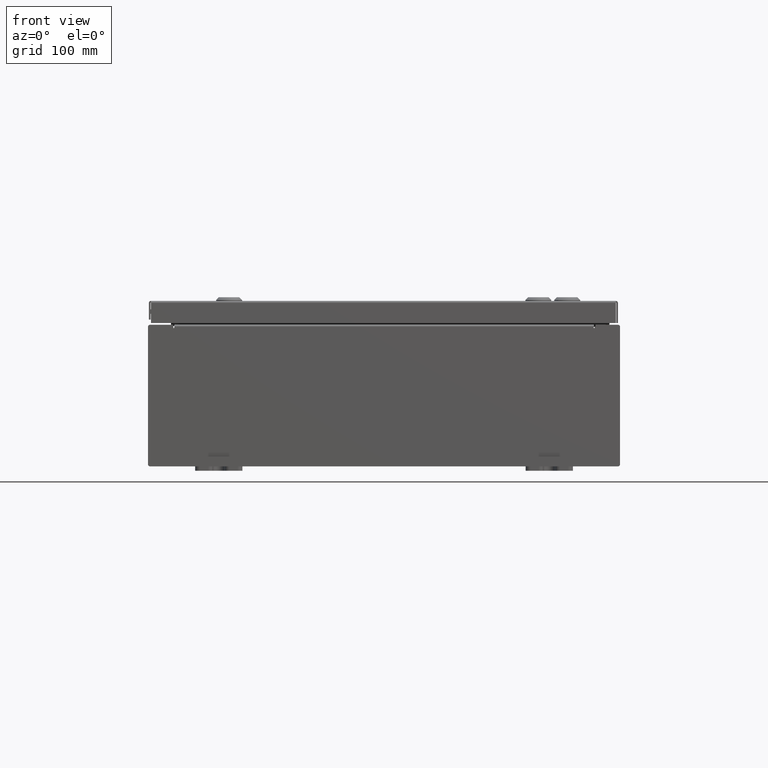
[diagram: clean part render]
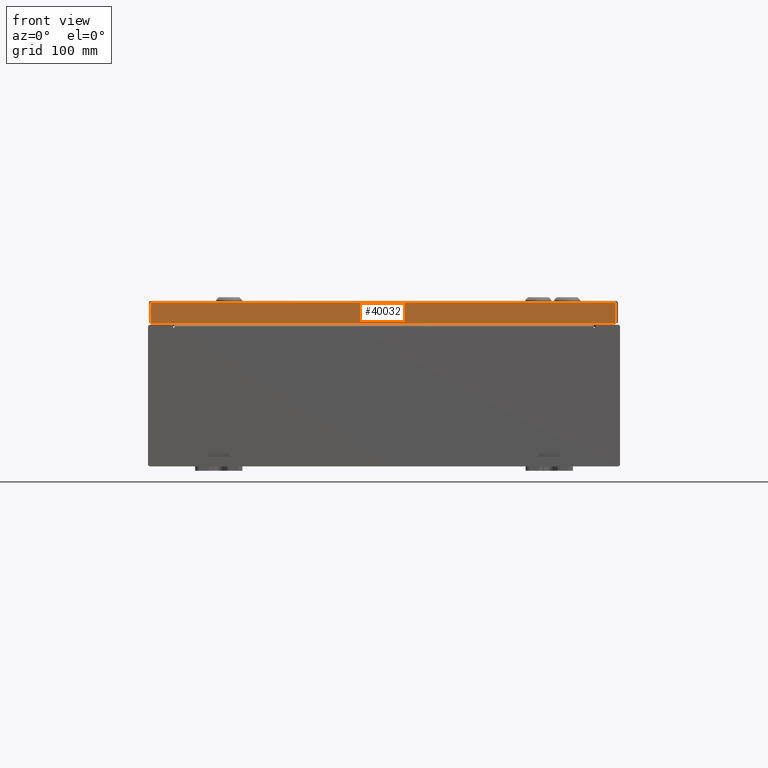
[diagram: same view with one face highlighted and labeled with its STEP entity id]
A machine part, front view. The second image highlights one B-rep face of the part: STEP entity #40032.
In plain terms, the highlighted planar face has unit normal (-0, 1, -0).
Its self-contained STEP definition (entity closure, byte-faithful):
#600 = DIRECTION ( 'NONE',  ( 0.0000000000000000000, -2.532419924601866100E-015, -1.000000000000000000 ) ) ;
#942 = DIRECTION ( 'NONE',  ( 1.000000000000000000, 3.132763603081818100E-031, -7.843572268217993600E-046 ) ) ;
#1187 = CARTESIAN_POINT ( 'NONE',  ( 9.937499999999998200, -9.937500000000003600, -0.9377000000000002000 ) ) ;
#5602 = CARTESIAN_POINT ( 'NONE',  ( 9.848657864376265900, -9.937500000000003600, -0.9377000000000002000 ) ) ;
#6140 = LINE ( 'NONE', #34784, #19045 ) ;
#6841 = DIRECTION ( 'NONE',  ( -3.132763603081817700E-031, 1.000000000000000000, -2.532419924601866100E-015 ) ) ;
#9041 = VECTOR ( 'NONE', #600, 39.37007874015748100 ) ;
#9801 = VERTEX_POINT ( 'NONE', #59456 ) ;
#10541 = LINE ( 'NONE', #43972, #9041 ) ;
#11494 = CARTESIAN_POINT ( 'NONE',  ( 0.0000000000000000000, -9.937500000000001800, 2.513300154171122100E-014 ) ) ;
#11991 = DIRECTION ( 'NONE',  ( -1.000000000000000000, 4.379057701015054300E-047, 1.237063242414006500E-016 ) ) ;
#12560 = VECTOR ( 'NONE', #11991, 39.37007874015748100 ) ;
#12827 = CARTESIAN_POINT ( 'NONE',  ( -9.848657864376264100, -9.937500000000001800, -0.08770000000000026400 ) ) ;
#17502 = AXIS2_PLACEMENT_3D ( 'NONE', #11494, #6841, #40694 ) ;
#17581 = FACE_OUTER_BOUND ( 'NONE', #58434, .T. ) ;
#19045 = VECTOR ( 'NONE', #942, 39.37007874015748100 ) ;
#19367 = EDGE_CURVE ( 'NONE', #9801, #44707, #36779, .T. ) ;
#23908 = VECTOR ( 'NONE', #26051, 39.37007874015748100 ) ;
#25332 = VERTEX_POINT ( 'NONE', #58697 ) ;
#26051 = DIRECTION ( 'NONE',  ( -0.0000000000000000000, -2.532419924601866100E-015, -1.000000000000000000 ) ) ;
#26956 = LINE ( 'NONE', #1187, #12560 ) ;
#28093 = EDGE_CURVE ( 'NONE', #62603, #9801, #6140, .T. ) ;
#34784 = CARTESIAN_POINT ( 'NONE',  ( 9.937499999999998200, -9.937500000000001800, -0.08770000000000026400 ) ) ;
#36779 = LINE ( 'NONE', #45303, #23908 ) ;
#39788 = ORIENTED_EDGE ( 'NONE', *, *, #60040, .T. ) ;
#40032 = ADVANCED_FACE ( 'NONE', ( #17581 ), #45166, .F. ) ;
#40694 = DIRECTION ( 'NONE',  ( 0.0000000000000000000, 2.532419924601866100E-015, 1.000000000000000000 ) ) ;
#41273 = ORIENTED_EDGE ( 'NONE', *, *, #28093, .F. ) ;
#43972 = CARTESIAN_POINT ( 'NONE',  ( -9.848657864376265900, -9.937500000000001800, 2.513300154171122100E-014 ) ) ;
#44458 = ORIENTED_EDGE ( 'NONE', *, *, #48177, .F. ) ;
#44707 = VERTEX_POINT ( 'NONE', #5602 ) ;
#45166 = PLANE ( 'NONE',  #17502 ) ;
#45303 = CARTESIAN_POINT ( 'NONE',  ( 9.848657864376265900, -9.937500000000001800, -0.07470000000000015500 ) ) ;
#48177 = EDGE_CURVE ( 'NONE', #44707, #25332, #26956, .T. ) ;
#50742 = ORIENTED_EDGE ( 'NONE', *, *, #19367, .F. ) ;
#58434 = EDGE_LOOP ( 'NONE', ( #41273, #39788, #44458, #50742 ) ) ;
#58697 = CARTESIAN_POINT ( 'NONE',  ( -9.848657864376264100, -9.937500000000003600, -0.9376999999999969800 ) ) ;
#59456 = CARTESIAN_POINT ( 'NONE',  ( 9.848657864376264100, -9.937500000000001800, -0.08770000000000026400 ) ) ;
#60040 = EDGE_CURVE ( 'NONE', #62603, #25332, #10541, .T. ) ;
#62603 = VERTEX_POINT ( 'NONE', #12827 ) ;